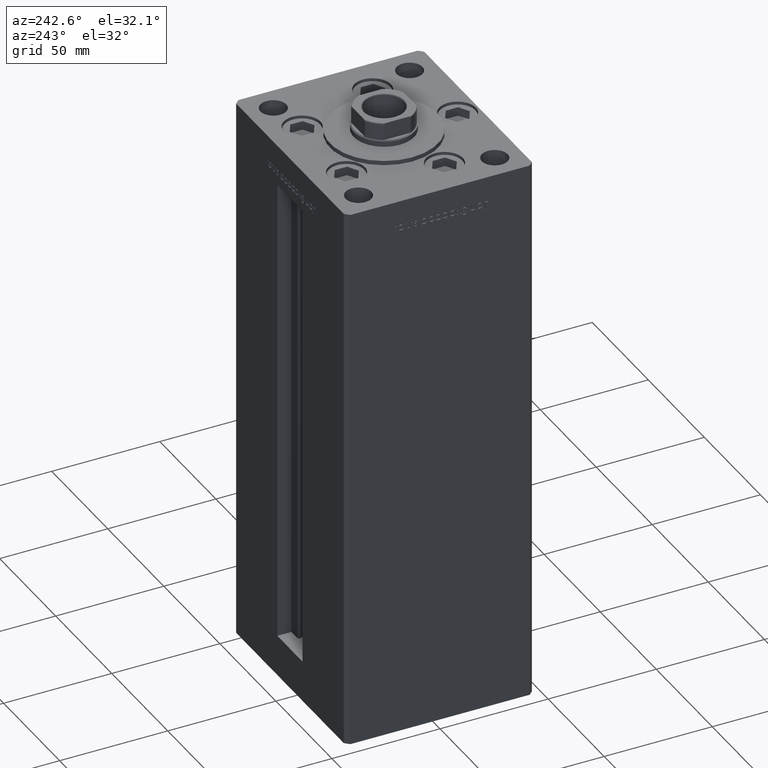
[diagram: clean part render]
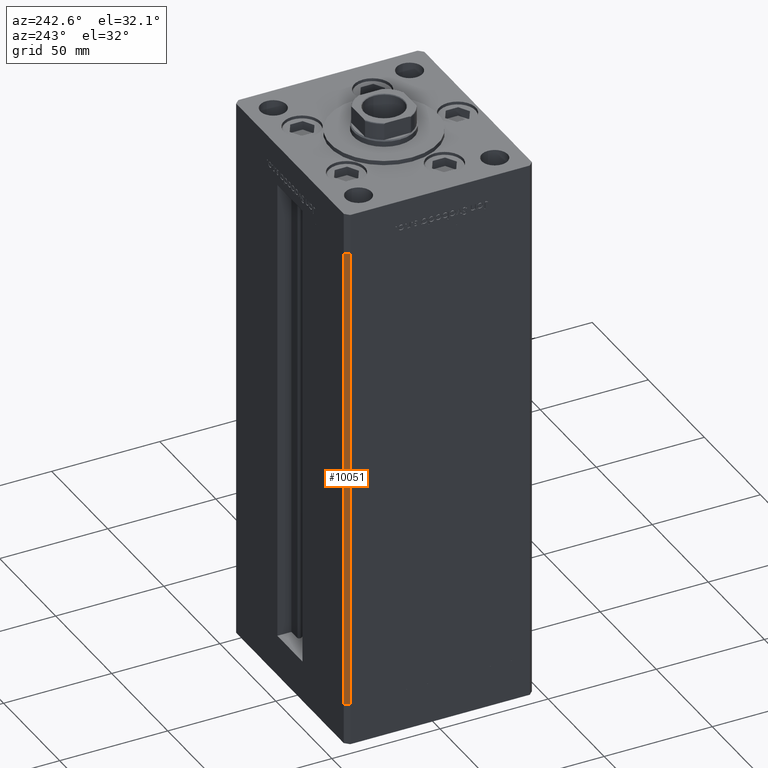
[diagram: same view with one face highlighted and labeled with its STEP entity id]
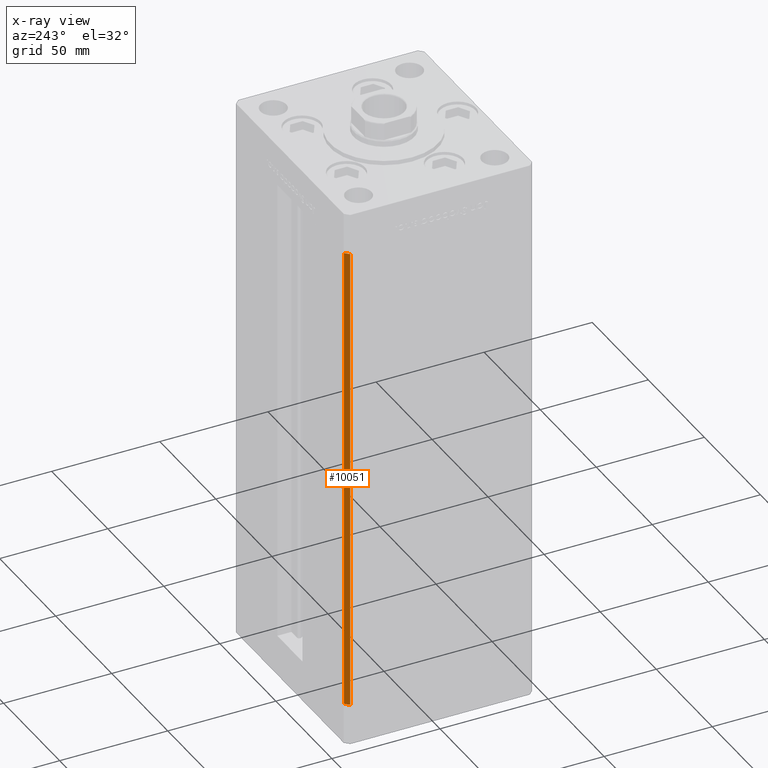
[diagram: x-ray of the same camera — body ghosted, the highlighted face saturated]
A machine part, auxiliary view. The second image highlights one B-rep face of the part: STEP entity #10051.
The next image is the same camera in x-ray: the body ghosted, the highlighted face saturated — about 0% of this face is hidden behind the body in this view.
In plain terms, the highlighted planar face has unit normal (0.7071, -0.7071, 0).
Its self-contained STEP definition (entity closure, byte-faithful):
#37 = LINE ( 'NONE', #16137, #21685 ) ;
#91 = VECTOR ( 'NONE', #43656, 1000.000000000000000 ) ;
#682 = AXIS2_PLACEMENT_3D ( 'NONE', #8067, #41008, #4885 ) ;
#1900 = EDGE_CURVE ( 'NONE', #18353, #24151, #37, .T. ) ;
#2890 = CARTESIAN_POINT ( 'NONE',  ( -50.00000000000001421, 41.49999999999999289, 218.5000000000000000 ) ) ;
#3072 = ORIENTED_EDGE ( 'NONE', *, *, #24114, .T. ) ;
#3333 = ORIENTED_EDGE ( 'NONE', *, *, #5555, .F. ) ;
#4885 = DIRECTION ( 'NONE',  ( 0.7071067811865486830, 0.7071067811865463515, 0.000000000000000000 ) ) ;
#5168 = VERTEX_POINT ( 'NONE', #41544 ) ;
#5555 = EDGE_CURVE ( 'NONE', #24151, #27484, #11844, .T. ) ;
#6990 = CARTESIAN_POINT ( 'NONE',  ( -48.00000000000000711, 43.50000000000000000, 218.5000000000000000 ) ) ;
#7447 = VECTOR ( 'NONE', #47461, 1000.000000000000000 ) ;
#8067 = CARTESIAN_POINT ( 'NONE',  ( -48.00000000000000711, 43.50000000000000000, 218.5000000000000000 ) ) ;
#10051 = ADVANCED_FACE ( 'NONE', ( #44201 ), #44969, .F. ) ;
#11844 = LINE ( 'NONE', #2890, #7447 ) ;
#15688 = LINE ( 'NONE', #43919, #91 ) ;
#16137 = CARTESIAN_POINT ( 'NONE',  ( -48.00000000000000711, 43.50000000000000000, 218.5000000000000000 ) ) ;
#18353 = VERTEX_POINT ( 'NONE', #39273 ) ;
#18596 = LINE ( 'NONE', #6990, #44457 ) ;
#21685 = VECTOR ( 'NONE', #33513, 1000.000000000000000 ) ;
#22970 = EDGE_LOOP ( 'NONE', ( #38364, #3333, #42232, #3072 ) ) ;
#24114 = EDGE_CURVE ( 'NONE', #18353, #5168, #18596, .T. ) ;
#24151 = VERTEX_POINT ( 'NONE', #36230 ) ;
#27484 = VERTEX_POINT ( 'NONE', #43996 ) ;
#31256 = DIRECTION ( 'NONE',  ( -0.000000000000000000, -0.000000000000000000, -1.000000000000000000 ) ) ;
#33513 = DIRECTION ( 'NONE',  ( -0.7071067811865487940, -0.7071067811865463515, 0.000000000000000000 ) ) ;
#36230 = CARTESIAN_POINT ( 'NONE',  ( -50.00000000000001421, 41.49999999999999289, 218.5000000000000000 ) ) ;
#36451 = EDGE_CURVE ( 'NONE', #5168, #27484, #15688, .T. ) ;
#38364 = ORIENTED_EDGE ( 'NONE', *, *, #36451, .T. ) ;
#39273 = CARTESIAN_POINT ( 'NONE',  ( -48.00000000000000711, 43.50000000000000000, 218.5000000000000000 ) ) ;
#41008 = DIRECTION ( 'NONE',  ( 0.7071067811865463515, -0.7071067811865486830, 0.000000000000000000 ) ) ;
#41544 = CARTESIAN_POINT ( 'NONE',  ( -48.00000000000000711, 43.50000000000000000, 0.000000000000000000 ) ) ;
#42232 = ORIENTED_EDGE ( 'NONE', *, *, #1900, .F. ) ;
#43656 = DIRECTION ( 'NONE',  ( -0.7071067811865487940, -0.7071067811865463515, 0.000000000000000000 ) ) ;
#43919 = CARTESIAN_POINT ( 'NONE',  ( -48.00000000000000711, 43.50000000000000000, 0.000000000000000000 ) ) ;
#43996 = CARTESIAN_POINT ( 'NONE',  ( -50.00000000000001421, 41.49999999999999289, 0.000000000000000000 ) ) ;
#44201 = FACE_OUTER_BOUND ( 'NONE', #22970, .T. ) ;
#44457 = VECTOR ( 'NONE', #31256, 1000.000000000000000 ) ;
#44969 = PLANE ( 'NONE',  #682 ) ;
#47461 = DIRECTION ( 'NONE',  ( -0.000000000000000000, -0.000000000000000000, -1.000000000000000000 ) ) ;